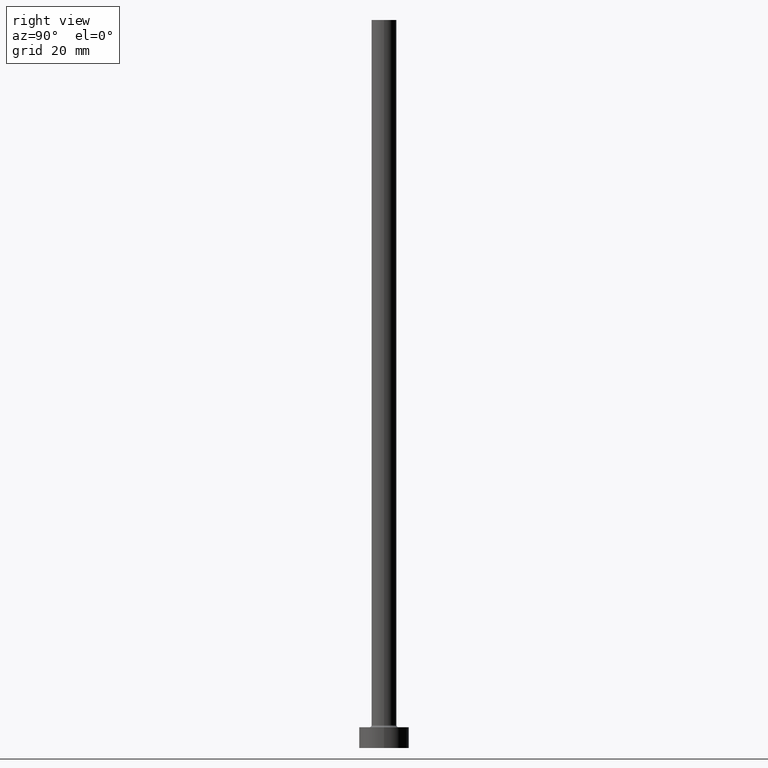
[diagram: clean part render]
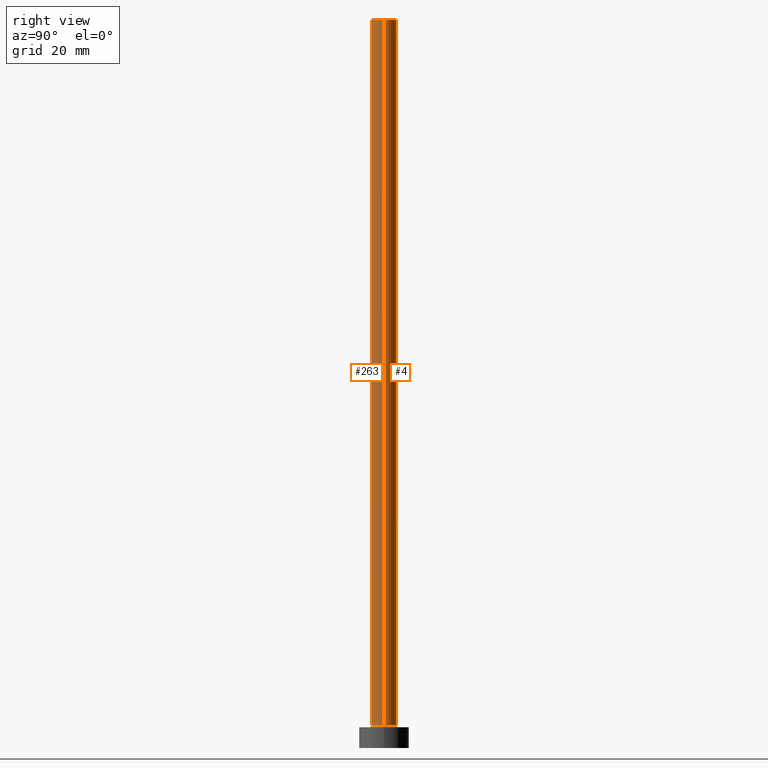
[diagram: same view with one multi-face feature highlighted, each face labeled with its STEP entity id]
A machine part, right view. The highlighted faces form ONE feature: a constant-radius fillet chain: 2 tangent blend faces with common blend radius 3 mm. The faces share edges in the B-rep.
Their STEP definitions:
[1] entity #4 (Cylinder):
#4 = ADVANCED_FACE ( 'NONE', ( #415 ), #43, .T. ) ;
#23 = DIRECTION ( 'NONE',  ( -0.000000000000000000, -0.000000000000000000, -1.000000000000000000 ) ) ;
#34 = AXIS2_PLACEMENT_3D ( 'NONE', #444, #125, #271 ) ;
#42 = EDGE_CURVE ( 'NONE', #282, #357, #45, .T. ) ;
#43 = CYLINDRICAL_SURFACE ( 'NONE', #216, 3.000000000000000444 ) ;
#44 = DIRECTION ( 'NONE',  ( -0.000000000000000000, -0.000000000000000000, -1.000000000000000000 ) ) ;
#45 = CIRCLE ( 'NONE', #82, 3.000000000000000444 ) ;
#82 = AXIS2_PLACEMENT_3D ( 'NONE', #274, #423, #107 ) ;
#101 = EDGE_CURVE ( 'NONE', #199, #282, #144, .T. ) ;
#107 = DIRECTION ( 'NONE',  ( 1.000000000000000000, 0.000000000000000000, 0.000000000000000000 ) ) ;
#109 = CARTESIAN_POINT ( 'NONE',  ( 0.000000000000000000, 0.000000000000000000, 175.0000000000000284 ) ) ;
#115 = CIRCLE ( 'NONE', #34, 3.000000000000000444 ) ;
#120 = CARTESIAN_POINT ( 'NONE',  ( 3.000000000000000444, 3.673940397442060361E-16, 175.0000000000000284 ) ) ;
#125 = DIRECTION ( 'NONE',  ( 0.000000000000000000, 0.000000000000000000, 1.000000000000000000 ) ) ;
#126 = ORIENTED_EDGE ( 'NONE', *, *, #330, .F. ) ;
#130 = CARTESIAN_POINT ( 'NONE',  ( -3.000000000000000444, 0.000000000000000000, 5.500000000000005329 ) ) ;
#140 = EDGE_LOOP ( 'NONE', ( #438, #332, #142, #126 ) ) ;
#142 = ORIENTED_EDGE ( 'NONE', *, *, #42, .T. ) ;
#144 = LINE ( 'NONE', #214, #153 ) ;
#153 = VECTOR ( 'NONE', #44, 1000.000000000000000 ) ;
#157 = VECTOR ( 'NONE', #23, 1000.000000000000000 ) ;
#188 = VERTEX_POINT ( 'NONE', #322 ) ;
#199 = VERTEX_POINT ( 'NONE', #120 ) ;
#214 = CARTESIAN_POINT ( 'NONE',  ( 3.000000000000000444, 3.673940397442060361E-16, 175.0000000000000284 ) ) ;
#216 = AXIS2_PLACEMENT_3D ( 'NONE', #109, #344, #387 ) ;
#235 = CARTESIAN_POINT ( 'NONE',  ( -3.000000000000000444, 0.000000000000000000, 175.0000000000000284 ) ) ;
#271 = DIRECTION ( 'NONE',  ( 1.000000000000000000, 0.000000000000000000, 0.000000000000000000 ) ) ;
#274 = CARTESIAN_POINT ( 'NONE',  ( 0.000000000000000000, 0.000000000000000000, 5.500000000000005329 ) ) ;
#282 = VERTEX_POINT ( 'NONE', #306 ) ;
#304 = LINE ( 'NONE', #235, #157 ) ;
#306 = CARTESIAN_POINT ( 'NONE',  ( 3.000000000000000444, 3.673940397442060361E-16, 5.500000000000005329 ) ) ;
#322 = CARTESIAN_POINT ( 'NONE',  ( -3.000000000000000444, 0.000000000000000000, 175.0000000000000284 ) ) ;
#330 = EDGE_CURVE ( 'NONE', #188, #357, #304, .T. ) ;
#332 = ORIENTED_EDGE ( 'NONE', *, *, #101, .T. ) ;
#344 = DIRECTION ( 'NONE',  ( -0.000000000000000000, -0.000000000000000000, -1.000000000000000000 ) ) ;
#357 = VERTEX_POINT ( 'NONE', #130 ) ;
#365 = EDGE_CURVE ( 'NONE', #199, #188, #115, .T. ) ;
#387 = DIRECTION ( 'NONE',  ( -1.000000000000000000, 0.000000000000000000, 0.000000000000000000 ) ) ;
#415 = FACE_OUTER_BOUND ( 'NONE', #140, .T. ) ;
#423 = DIRECTION ( 'NONE',  ( 0.000000000000000000, 0.000000000000000000, 1.000000000000000000 ) ) ;
#438 = ORIENTED_EDGE ( 'NONE', *, *, #365, .F. ) ;
#444 = CARTESIAN_POINT ( 'NONE',  ( 0.000000000000000000, 0.000000000000000000, 175.0000000000000284 ) ) ;
[2] entity #263 (Cylinder):
#22 = ORIENTED_EDGE ( 'NONE', *, *, #289, .T. ) ;
#23 = DIRECTION ( 'NONE',  ( -0.000000000000000000, -0.000000000000000000, -1.000000000000000000 ) ) ;
#26 = CARTESIAN_POINT ( 'NONE',  ( 0.000000000000000000, 0.000000000000000000, 175.0000000000000284 ) ) ;
#27 = CIRCLE ( 'NONE', #425, 3.000000000000000444 ) ;
#44 = DIRECTION ( 'NONE',  ( -0.000000000000000000, -0.000000000000000000, -1.000000000000000000 ) ) ;
#92 = EDGE_LOOP ( 'NONE', ( #447, #246, #369, #22 ) ) ;
#101 = EDGE_CURVE ( 'NONE', #199, #282, #144, .T. ) ;
#103 = CYLINDRICAL_SURFACE ( 'NONE', #303, 3.000000000000000444 ) ;
#120 = CARTESIAN_POINT ( 'NONE',  ( 3.000000000000000444, 3.673940397442060361E-16, 175.0000000000000284 ) ) ;
#130 = CARTESIAN_POINT ( 'NONE',  ( -3.000000000000000444, 0.000000000000000000, 5.500000000000005329 ) ) ;
#144 = LINE ( 'NONE', #214, #153 ) ;
#153 = VECTOR ( 'NONE', #44, 1000.000000000000000 ) ;
#157 = VECTOR ( 'NONE', #23, 1000.000000000000000 ) ;
#164 = DIRECTION ( 'NONE',  ( -1.000000000000000000, 0.000000000000000000, 0.000000000000000000 ) ) ;
#165 = CIRCLE ( 'NONE', #424, 3.000000000000000444 ) ;
#186 = EDGE_CURVE ( 'NONE', #188, #199, #165, .T. ) ;
#187 = CARTESIAN_POINT ( 'NONE',  ( 0.000000000000000000, 0.000000000000000000, 175.0000000000000284 ) ) ;
#188 = VERTEX_POINT ( 'NONE', #322 ) ;
#199 = VERTEX_POINT ( 'NONE', #120 ) ;
#214 = CARTESIAN_POINT ( 'NONE',  ( 3.000000000000000444, 3.673940397442060361E-16, 175.0000000000000284 ) ) ;
#225 = DIRECTION ( 'NONE',  ( 1.000000000000000000, 0.000000000000000000, 0.000000000000000000 ) ) ;
#235 = CARTESIAN_POINT ( 'NONE',  ( -3.000000000000000444, 0.000000000000000000, 175.0000000000000284 ) ) ;
#246 = ORIENTED_EDGE ( 'NONE', *, *, #186, .F. ) ;
#263 = ADVANCED_FACE ( 'NONE', ( #411 ), #103, .T. ) ;
#269 = DIRECTION ( 'NONE',  ( 1.000000000000000000, 0.000000000000000000, 0.000000000000000000 ) ) ;
#273 = DIRECTION ( 'NONE',  ( 0.000000000000000000, 0.000000000000000000, 1.000000000000000000 ) ) ;
#282 = VERTEX_POINT ( 'NONE', #306 ) ;
#289 = EDGE_CURVE ( 'NONE', #357, #282, #27, .T. ) ;
#303 = AXIS2_PLACEMENT_3D ( 'NONE', #26, #336, #164 ) ;
#304 = LINE ( 'NONE', #235, #157 ) ;
#306 = CARTESIAN_POINT ( 'NONE',  ( 3.000000000000000444, 3.673940397442060361E-16, 5.500000000000005329 ) ) ;
#322 = CARTESIAN_POINT ( 'NONE',  ( -3.000000000000000444, 0.000000000000000000, 175.0000000000000284 ) ) ;
#330 = EDGE_CURVE ( 'NONE', #188, #357, #304, .T. ) ;
#336 = DIRECTION ( 'NONE',  ( -0.000000000000000000, -0.000000000000000000, -1.000000000000000000 ) ) ;
#357 = VERTEX_POINT ( 'NONE', #130 ) ;
#359 = DIRECTION ( 'NONE',  ( 0.000000000000000000, 0.000000000000000000, 1.000000000000000000 ) ) ;
#368 = CARTESIAN_POINT ( 'NONE',  ( 0.000000000000000000, 0.000000000000000000, 5.500000000000005329 ) ) ;
#369 = ORIENTED_EDGE ( 'NONE', *, *, #330, .T. ) ;
#411 = FACE_OUTER_BOUND ( 'NONE', #92, .T. ) ;
#424 = AXIS2_PLACEMENT_3D ( 'NONE', #187, #359, #225 ) ;
#425 = AXIS2_PLACEMENT_3D ( 'NONE', #368, #273, #269 ) ;
#447 = ORIENTED_EDGE ( 'NONE', *, *, #101, .F. ) ;